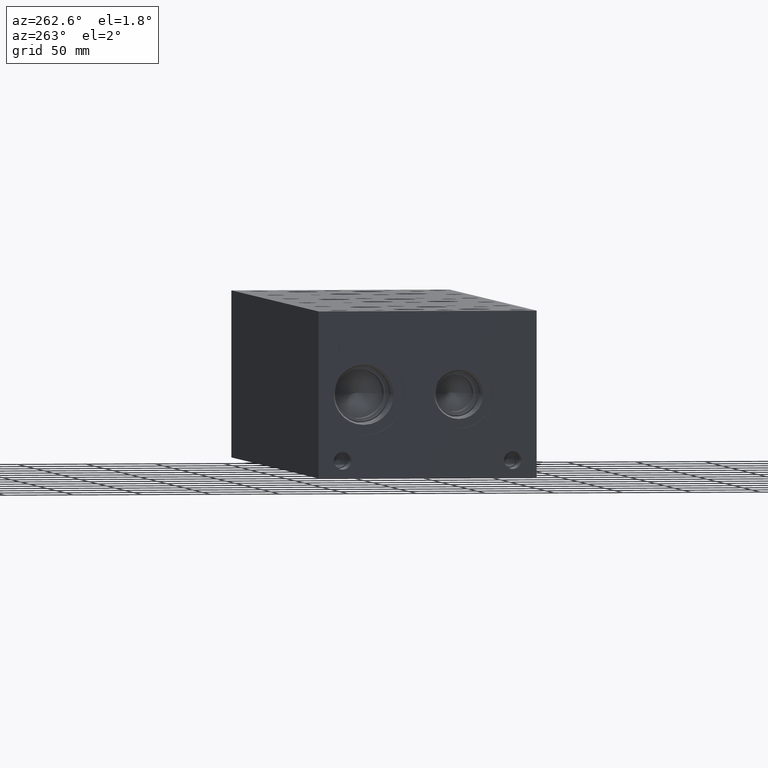
[diagram: clean part render]
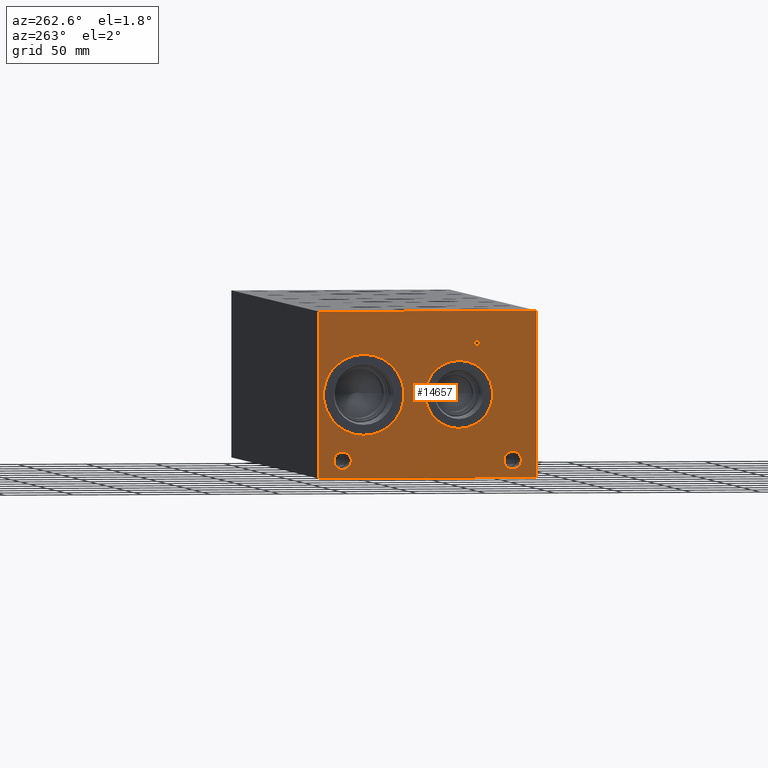
[diagram: same view with one face highlighted and labeled with its STEP entity id]
A machine part, auxiliary view. The second image highlights one B-rep face of the part: STEP entity #14657.
In plain terms, the highlighted planar face has unit normal (-1, 0, 0).
Its self-contained STEP definition (entity closure, byte-faithful):
#256=CIRCLE('',#15474,29.2862);
#257=CIRCLE('',#15475,29.2862);
#258=CIRCLE('',#15476,24.5618);
#259=CIRCLE('',#15477,24.5618);
#260=CIRCLE('',#15478,6.35);
#261=CIRCLE('',#15479,6.35);
#262=CIRCLE('',#15480,6.35);
#263=CIRCLE('',#15481,6.35);
#734=FACE_BOUND('',#2144,.T.);
#735=FACE_BOUND('',#2145,.T.);
#736=FACE_BOUND('',#2146,.T.);
#737=FACE_BOUND('',#2147,.T.);
#738=FACE_BOUND('',#2148,.T.);
#739=FACE_BOUND('',#2149,.T.);
#907=PLANE('',#15473);
#1325=FACE_OUTER_BOUND('',#2143,.T.);
#2143=EDGE_LOOP('',(#9884,#9885,#9886,#9887));
#2144=EDGE_LOOP('',(#9888,#9889));
#2145=EDGE_LOOP('',(#9890,#9891));
#2146=EDGE_LOOP('',(#9892,#9893));
#2147=EDGE_LOOP('',(#9894,#9895));
#2148=EDGE_LOOP('',(#9896,#9897,#9898,#9899,#9900,#9901,#9902,#9903));
#2149=EDGE_LOOP('',(#9904,#9905,#9906,#9907,#9908,#9909,#9910,#9911,#9912));
#3130=LINE('',#20508,#4444);
#3133=LINE('',#20514,#4447);
#3136=LINE('',#20520,#4450);
#3139=LINE('',#20526,#4453);
#3142=LINE('',#20532,#4456);
#3146=LINE('',#20575,#4460);
#3147=LINE('',#20577,#4461);
#3148=LINE('',#20579,#4462);
#3149=LINE('',#20580,#4463);
#3150=LINE('',#20599,#4464);
#3151=LINE('',#20601,#4465);
#3152=LINE('',#20603,#4466);
#3153=LINE('',#20605,#4467);
#3154=LINE('',#20607,#4468);
#3155=LINE('',#20609,#4469);
#3156=LINE('',#20611,#4470);
#3157=LINE('',#20612,#4471);
#4444=VECTOR('',#16691,10.);
#4447=VECTOR('',#16696,10.);
#4450=VECTOR('',#16701,10.);
#4453=VECTOR('',#16706,10.);
#4456=VECTOR('',#16711,10.);
#4460=VECTOR('',#16719,10.);
#4461=VECTOR('',#16720,10.);
#4462=VECTOR('',#16721,10.);
#4463=VECTOR('',#16722,10.);
#4464=VECTOR('',#16739,10.);
#4465=VECTOR('',#16740,10.);
#4466=VECTOR('',#16741,10.);
#4467=VECTOR('',#16742,10.);
#4468=VECTOR('',#16743,10.);
#4469=VECTOR('',#16744,10.);
#4470=VECTOR('',#16745,10.);
#4471=VECTOR('',#16746,10.);
#5706=B_SPLINE_CURVE_WITH_KNOTS('',2,(#20475,#20476,#20477,#20478),
 .UNSPECIFIED.,.F.,.F.,(3,1,3),(0.,1.,2.),.UNSPECIFIED.);
#5708=B_SPLINE_CURVE_WITH_KNOTS('',2,(#20496,#20497,#20498,#20499),
 .UNSPECIFIED.,.F.,.F.,(3,1,3),(0.,1.,2.),.UNSPECIFIED.);
#5710=B_SPLINE_CURVE_WITH_KNOTS('',2,(#20545,#20546,#20547,#20548),
 .UNSPECIFIED.,.F.,.F.,(3,1,3),(0.,1.,2.),.UNSPECIFIED.);
#5712=B_SPLINE_CURVE_WITH_KNOTS('',2,(#20563,#20564,#20565,#20566),
 .UNSPECIFIED.,.F.,.F.,(3,1,3),(0.,1.,2.),.UNSPECIFIED.);
#6104=VERTEX_POINT('',#20473);
#6105=VERTEX_POINT('',#20474);
#6108=VERTEX_POINT('',#20495);
#6110=VERTEX_POINT('',#20507);
#6112=VERTEX_POINT('',#20513);
#6114=VERTEX_POINT('',#20519);
#6116=VERTEX_POINT('',#20525);
#6118=VERTEX_POINT('',#20531);
#6120=VERTEX_POINT('',#20544);
#6122=VERTEX_POINT('',#20573);
#6123=VERTEX_POINT('',#20574);
#6124=VERTEX_POINT('',#20576);
#6125=VERTEX_POINT('',#20578);
#6126=VERTEX_POINT('',#20581);
#6127=VERTEX_POINT('',#20582);
#6128=VERTEX_POINT('',#20585);
#6129=VERTEX_POINT('',#20586);
#6130=VERTEX_POINT('',#20589);
#6131=VERTEX_POINT('',#20590);
#6132=VERTEX_POINT('',#20593);
#6133=VERTEX_POINT('',#20594);
#6134=VERTEX_POINT('',#20597);
#6135=VERTEX_POINT('',#20598);
#6136=VERTEX_POINT('',#20600);
#6137=VERTEX_POINT('',#20602);
#6138=VERTEX_POINT('',#20604);
#6139=VERTEX_POINT('',#20606);
#6140=VERTEX_POINT('',#20608);
#6141=VERTEX_POINT('',#20610);
#7620=EDGE_CURVE('',#6104,#6105,#5706,.T.);
#7624=EDGE_CURVE('',#6108,#6104,#5708,.T.);
#7627=EDGE_CURVE('',#6110,#6108,#3130,.T.);
#7630=EDGE_CURVE('',#6112,#6110,#3133,.T.);
#7633=EDGE_CURVE('',#6114,#6112,#3136,.T.);
#7636=EDGE_CURVE('',#6116,#6114,#3139,.T.);
#7639=EDGE_CURVE('',#6118,#6116,#3142,.T.);
#7642=EDGE_CURVE('',#6120,#6118,#5710,.T.);
#7645=EDGE_CURVE('',#6105,#6120,#5712,.T.);
#7647=EDGE_CURVE('',#6122,#6123,#3146,.T.);
#7648=EDGE_CURVE('',#6123,#6124,#3147,.T.);
#7649=EDGE_CURVE('',#6125,#6124,#3148,.T.);
#7650=EDGE_CURVE('',#6122,#6125,#3149,.T.);
#7651=EDGE_CURVE('',#6126,#6127,#256,.T.);
#7652=EDGE_CURVE('',#6127,#6126,#257,.T.);
#7653=EDGE_CURVE('',#6128,#6129,#258,.T.);
#7654=EDGE_CURVE('',#6129,#6128,#259,.T.);
#7655=EDGE_CURVE('',#6130,#6131,#260,.T.);
#7656=EDGE_CURVE('',#6131,#6130,#261,.T.);
#7657=EDGE_CURVE('',#6132,#6133,#262,.T.);
#7658=EDGE_CURVE('',#6133,#6132,#263,.T.);
#7659=EDGE_CURVE('',#6134,#6135,#3150,.T.);
#7660=EDGE_CURVE('',#6135,#6136,#3151,.T.);
#7661=EDGE_CURVE('',#6136,#6137,#3152,.T.);
#7662=EDGE_CURVE('',#6137,#6138,#3153,.T.);
#7663=EDGE_CURVE('',#6138,#6139,#3154,.T.);
#7664=EDGE_CURVE('',#6139,#6140,#3155,.T.);
#7665=EDGE_CURVE('',#6140,#6141,#3156,.T.);
#7666=EDGE_CURVE('',#6141,#6134,#3157,.T.);
#9884=ORIENTED_EDGE('',*,*,#7647,.T.);
#9885=ORIENTED_EDGE('',*,*,#7648,.T.);
#9886=ORIENTED_EDGE('',*,*,#7649,.F.);
#9887=ORIENTED_EDGE('',*,*,#7650,.F.);
#9888=ORIENTED_EDGE('',*,*,#7651,.T.);
#9889=ORIENTED_EDGE('',*,*,#7652,.T.);
#9890=ORIENTED_EDGE('',*,*,#7653,.T.);
#9891=ORIENTED_EDGE('',*,*,#7654,.T.);
#9892=ORIENTED_EDGE('',*,*,#7655,.T.);
#9893=ORIENTED_EDGE('',*,*,#7656,.T.);
#9894=ORIENTED_EDGE('',*,*,#7657,.T.);
#9895=ORIENTED_EDGE('',*,*,#7658,.T.);
#9896=ORIENTED_EDGE('',*,*,#7659,.T.);
#9897=ORIENTED_EDGE('',*,*,#7660,.T.);
#9898=ORIENTED_EDGE('',*,*,#7661,.T.);
#9899=ORIENTED_EDGE('',*,*,#7662,.T.);
#9900=ORIENTED_EDGE('',*,*,#7663,.T.);
#9901=ORIENTED_EDGE('',*,*,#7664,.T.);
#9902=ORIENTED_EDGE('',*,*,#7665,.T.);
#9903=ORIENTED_EDGE('',*,*,#7666,.T.);
#9904=ORIENTED_EDGE('',*,*,#7620,.T.);
#9905=ORIENTED_EDGE('',*,*,#7645,.T.);
#9906=ORIENTED_EDGE('',*,*,#7642,.T.);
#9907=ORIENTED_EDGE('',*,*,#7639,.T.);
#9908=ORIENTED_EDGE('',*,*,#7636,.T.);
#9909=ORIENTED_EDGE('',*,*,#7633,.T.);
#9910=ORIENTED_EDGE('',*,*,#7630,.T.);
#9911=ORIENTED_EDGE('',*,*,#7627,.T.);
#9912=ORIENTED_EDGE('',*,*,#7624,.T.);
#14657=ADVANCED_FACE('',(#1325,#734,#735,#736,#737,#738,#739),#907,.T.);
#15473=AXIS2_PLACEMENT_3D('',#20572,#16717,#16718);
#15474=AXIS2_PLACEMENT_3D('',#20583,#16723,#16724);
#15475=AXIS2_PLACEMENT_3D('',#20584,#16725,#16726);
#15476=AXIS2_PLACEMENT_3D('',#20587,#16727,#16728);
#15477=AXIS2_PLACEMENT_3D('',#20588,#16729,#16730);
#15478=AXIS2_PLACEMENT_3D('',#20591,#16731,#16732);
#15479=AXIS2_PLACEMENT_3D('',#20592,#16733,#16734);
#15480=AXIS2_PLACEMENT_3D('',#20595,#16735,#16736);
#15481=AXIS2_PLACEMENT_3D('',#20596,#16737,#16738);
#16691=DIRECTION('',(0.,-1.,-1.11355060845355E-14));
#16696=DIRECTION('',(0.,-2.79741238752512E-15,1.));
#16701=DIRECTION('',(0.,1.,2.1048822476866E-14));
#16706=DIRECTION('',(0.,3.75218139804998E-15,-1.));
#16711=DIRECTION('',(0.,1.,0.));
#16717=DIRECTION('center_axis',(-1.,0.,0.));
#16718=DIRECTION('ref_axis',(0.,-1.,0.));
#16719=DIRECTION('',(0.,-1.,0.));
#16720=DIRECTION('',(0.,0.,1.));
#16721=DIRECTION('',(0.,-1.,0.));
#16722=DIRECTION('',(0.,0.,1.));
#16723=DIRECTION('center_axis',(1.,0.,0.));
#16724=DIRECTION('ref_axis',(0.,0.,1.));
#16725=DIRECTION('center_axis',(1.,0.,0.));
#16726=DIRECTION('ref_axis',(0.,0.,1.));
#16727=DIRECTION('center_axis',(1.,0.,0.));
#16728=DIRECTION('ref_axis',(0.,0.,1.));
#16729=DIRECTION('center_axis',(1.,0.,0.));
#16730=DIRECTION('ref_axis',(0.,0.,1.));
#16731=DIRECTION('center_axis',(1.,0.,0.));
#16732=DIRECTION('ref_axis',(0.,1.,0.));
#16733=DIRECTION('center_axis',(1.,0.,0.));
#16734=DIRECTION('ref_axis',(0.,1.,0.));
#16735=DIRECTION('center_axis',(1.,0.,0.));
#16736=DIRECTION('ref_axis',(0.,1.,0.));
#16737=DIRECTION('center_axis',(1.,0.,0.));
#16738=DIRECTION('ref_axis',(0.,1.,0.));
#16739=DIRECTION('',(0.,1.,0.));
#16740=DIRECTION('',(0.,-3.17280044688052E-15,1.));
#16741=DIRECTION('',(0.,1.,8.33818088455555E-15));
#16742=DIRECTION('',(0.,0.,1.));
#16743=DIRECTION('',(0.,-1.,0.));
#16744=DIRECTION('',(0.,0.,-1.));
#16745=DIRECTION('',(0.,1.,0.));
#16746=DIRECTION('',(0.,3.17280044688052E-15,-1.));
#20473=CARTESIAN_POINT('',(0.,42.1750327976406,98.7907681439707));
#20474=CARTESIAN_POINT('',(0.,41.418590345468,97.272737372604));
#20475=CARTESIAN_POINT('Ctrl Pts',(0.,42.1750327976406,98.7907681439707));
#20476=CARTESIAN_POINT('Ctrl Pts',(0.,41.8199679731514,98.5489123939564));
#20477=CARTESIAN_POINT('Ctrl Pts',(0.,41.418590345468,97.8027616758269));
#20478=CARTESIAN_POINT('Ctrl Pts',(0.,41.418590345468,97.272737372604));
#20495=CARTESIAN_POINT('',(0.,43.8371478456117,99.1869999046326));
#20496=CARTESIAN_POINT('Ctrl Pts',(0.,43.8371478456117,99.1869999046326));
#20497=CARTESIAN_POINT('Ctrl Pts',(0.,43.2711024732376,99.1869999046326));
#20498=CARTESIAN_POINT('Ctrl Pts',(0.,42.478638951914,99.0017486918556));
#20499=CARTESIAN_POINT('Ctrl Pts',(0.,42.1750327976406,98.7907681439707));
#20507=CARTESIAN_POINT('',(0.,45.4323666223022,99.1869999046326));
#20508=CARTESIAN_POINT('',(0.,102.091183311151,99.1869999046332));
#20513=CARTESIAN_POINT('',(0.,45.4323666223022,92.837));
#20514=CARTESIAN_POINT('',(0.,45.4323666223023,46.4184999999998));
#20519=CARTESIAN_POINT('',(0.,44.5884444307627,92.837));
#20520=CARTESIAN_POINT('',(0.,101.66922221538,92.8370000000012));
#20525=CARTESIAN_POINT('',(0.,44.5884444307627,95.2040988299279));
#20526=CARTESIAN_POINT('',(0.,44.5884444307629,47.6020494149637));
#20531=CARTESIAN_POINT('',(0.,43.8731689147628,95.2040988299279));
#20532=CARTESIAN_POINT('',(0.,101.311584457381,95.2040988299279));
#20544=CARTESIAN_POINT('',(0.,41.9743439837989,95.8627698086904));
#20545=CARTESIAN_POINT('Ctrl Pts',(0.,41.9743439837989,95.8627698086904));
#20546=CARTESIAN_POINT('Ctrl Pts',(0.,42.3036794731802,95.5385801863307));
#20547=CARTESIAN_POINT('Ctrl Pts',(0.,43.1939144679139,95.2040988299279));
#20548=CARTESIAN_POINT('Ctrl Pts',(0.,43.8731689147628,95.2040988299279));
#20563=CARTESIAN_POINT('Ctrl Pts',(0.,41.418590345468,97.272737372604));
#20564=CARTESIAN_POINT('Ctrl Pts',(0.,41.418590345468,96.8610680108773));
#20565=CARTESIAN_POINT('Ctrl Pts',(0.,41.7119047656982,96.1200631597695));
#20566=CARTESIAN_POINT('Ctrl Pts',(0.,41.9743439837989,95.8627698086904));
#20572=CARTESIAN_POINT('Origin',(0.,158.75,0.));
#20573=CARTESIAN_POINT('',(0.,158.75,0.));
#20574=CARTESIAN_POINT('',(0.,0.,0.));
#20575=CARTESIAN_POINT('',(0.,158.75,0.));
#20576=CARTESIAN_POINT('',(0.,0.,120.65));
#20577=CARTESIAN_POINT('',(0.,0.,0.));
#20578=CARTESIAN_POINT('',(0.,158.75,120.65));
#20579=CARTESIAN_POINT('',(0.,158.75,120.65));
#20580=CARTESIAN_POINT('',(0.,158.75,0.));
#20581=CARTESIAN_POINT('',(0.,125.8316,89.6112));
#20582=CARTESIAN_POINT('',(0.,125.8316,31.0388));
#20583=CARTESIAN_POINT('Origin',(0.,125.8316,60.325));
#20584=CARTESIAN_POINT('Origin',(0.,125.8316,60.325));
#20585=CARTESIAN_POINT('',(0.,56.4896,84.8868));
#20586=CARTESIAN_POINT('',(6.93889390390723E-17,56.4896,35.7632));
#20587=CARTESIAN_POINT('Origin',(0.,56.4896,60.325));
#20588=CARTESIAN_POINT('Origin',(0.,56.4896,60.325));
#20589=CARTESIAN_POINT('',(0.,147.6248,12.7));
#20590=CARTESIAN_POINT('',(0.,134.9248,12.7));
#20591=CARTESIAN_POINT('Origin',(0.,141.2748,12.7));
#20592=CARTESIAN_POINT('Origin',(0.,141.2748,12.7));
#20593=CARTESIAN_POINT('',(0.,23.7998,12.7));
#20594=CARTESIAN_POINT('',(0.,11.0998,12.7));
#20595=CARTESIAN_POINT('Origin',(0.,17.4498,12.7));
#20596=CARTESIAN_POINT('Origin',(0.,17.4498,12.7));
#20597=CARTESIAN_POINT('',(0.,143.944434728547,92.837));
#20598=CARTESIAN_POINT('',(0.,144.788356920086,92.837));
#20599=CARTESIAN_POINT('',(0.,151.347217364273,92.837));
#20600=CARTESIAN_POINT('',(0.,144.788356920086,98.4357033194815));
#20601=CARTESIAN_POINT('',(0.,144.788356920087,46.4185));
#20602=CARTESIAN_POINT('',(0.,146.918745867022,98.4357033194816));
#20603=CARTESIAN_POINT('',(0.,151.769178460043,98.4357033194816));
#20604=CARTESIAN_POINT('',(0.,146.918745867022,99.1869999046326));
#20605=CARTESIAN_POINT('',(0.,146.918745867022,49.2178516597408));
#20606=CARTESIAN_POINT('',(0.,141.814045781612,99.1869999046326));
#20607=CARTESIAN_POINT('',(0.,152.834372933511,99.1869999046326));
#20608=CARTESIAN_POINT('',(0.,141.814045781612,98.4357033194815));
#20609=CARTESIAN_POINT('',(0.,141.814045781612,49.5934999523163));
#20610=CARTESIAN_POINT('',(0.,143.944434728547,98.4357033194815));
#20611=CARTESIAN_POINT('',(0.,150.282022890806,98.4357033194815));
#20612=CARTESIAN_POINT('',(0.,143.944434728547,49.2178516597407));